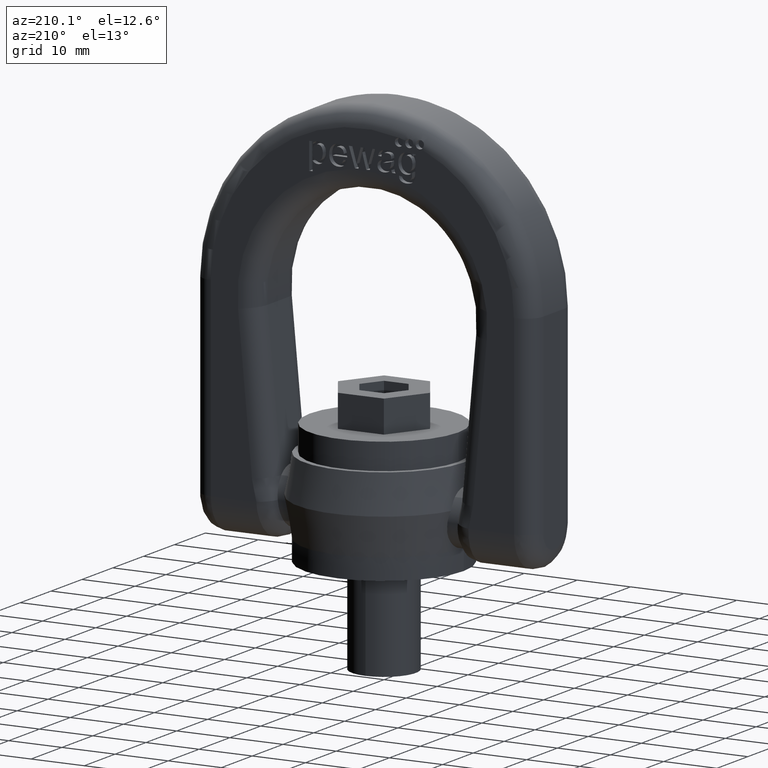
[diagram: clean part render]
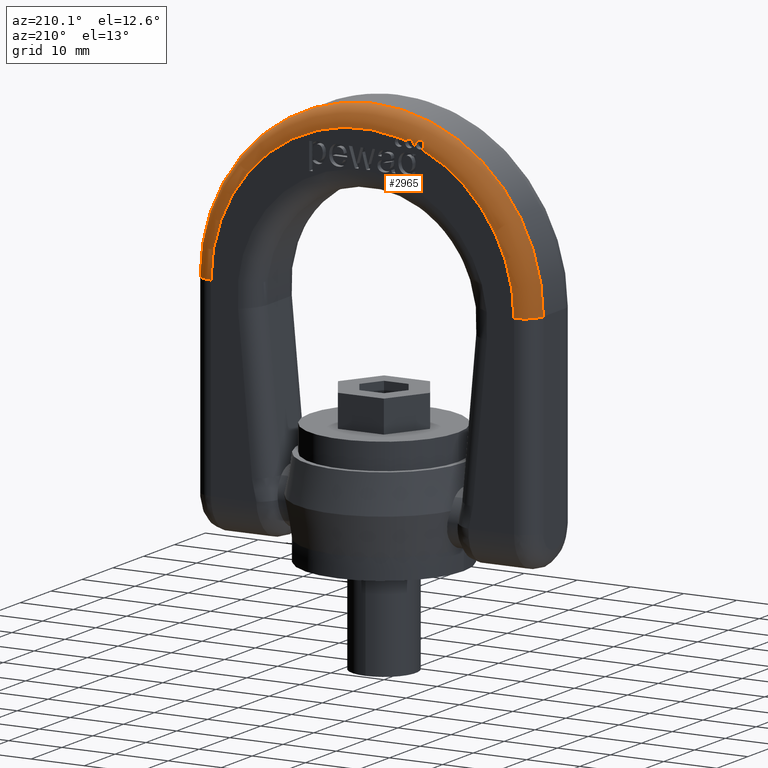
[diagram: same view with one face highlighted and labeled with its STEP entity id]
A machine part, auxiliary view. The second image highlights one B-rep face of the part: STEP entity #2965.
In plain terms, the highlighted toroidal blend (fillet) surface has major radius 28.5 mm and minor (blend) radius 3.5 mm.
Its self-contained STEP definition (entity closure, byte-faithful):
#210=TOROIDAL_SURFACE('',#5801,28.5,3.5);
#530=B_SPLINE_CURVE_WITH_KNOTS('',3,(#8466,#8467,#8468,#8469,#8470,#8471,
#8472,#8473,#8474,#8475,#8476,#8477,#8478,#8479,#8480,#8481,#8482,#8483,
#8484,#8485,#8486,#8487,#8488,#8489,#8490),.UNSPECIFIED.,.F.,.F.,(4,3,3,
3,3,3,3,3,4),(0.,0.124891175513873,0.249683168515219,0.375807004107994,
0.501847207664269,0.626400478712195,0.750895691613408,0.876854984452981,
1.),.UNSPECIFIED.);
#531=B_SPLINE_CURVE_WITH_KNOTS('',3,(#8495,#8496,#8497,#8498,#8499,#8500,
#8501),.UNSPECIFIED.,.F.,.F.,(4,3,4),(0.,0.649482804759324,1.),
 .UNSPECIFIED.);
#556=B_SPLINE_CURVE_WITH_KNOTS('',3,(#8711,#8712,#8713,#8714,#8715,#8716,
#8717,#8718,#8719,#8720,#8721,#8722,#8723,#8724,#8725,#8726,#8727,#8728,
#8729,#8730,#8731,#8732,#8733,#8734,#8735,#8736,#8737,#8738,#8739,#8740,
#8741,#8742,#8743,#8744,#8745,#8746,#8747,#8748,#8749,#8750,#8751,#8752,
#8753),.UNSPECIFIED.,.F.,.F.,(4,3,3,3,3,3,3,3,3,3,3,3,3,3,4),(0.,0.0720363637614495,
0.144085640095047,0.216049266328508,0.289764553616157,0.365923573314095,
0.442048626976867,0.51445691378457,0.583455080580775,0.653082710806686,
0.726414047090836,0.802777441224228,0.878621510332889,0.951848527467296,
1.),.UNSPECIFIED.);
#2611=FACE_OUTER_BOUND('',#3321,.T.);
#2965=ADVANCED_FACE('',(#2611),#210,.T.);
#3321=EDGE_LOOP('',(#4479,#4480,#4481,#4482,#4483,#4484,#4485,#4486,#4487,
#4488));
#4479=ORIENTED_EDGE('',*,*,#5540,.T.);
#4480=ORIENTED_EDGE('',*,*,#5101,.F.);
#4481=ORIENTED_EDGE('',*,*,#5542,.F.);
#4482=ORIENTED_EDGE('',*,*,#5316,.F.);
#4483=ORIENTED_EDGE('',*,*,#5360,.F.);
#4484=ORIENTED_EDGE('',*,*,#5314,.F.);
#4485=ORIENTED_EDGE('',*,*,#5358,.F.);
#4486=ORIENTED_EDGE('',*,*,#5312,.F.);
#4487=ORIENTED_EDGE('',*,*,#5390,.F.);
#4488=ORIENTED_EDGE('',*,*,#5310,.F.);
#4668=VERTEX_POINT('',#7071);
#4681=VERTEX_POINT('',#7103);
#4807=VERTEX_POINT('',#8286);
#4808=VERTEX_POINT('',#8288);
#4809=VERTEX_POINT('',#8290);
#4810=VERTEX_POINT('',#8292);
#4811=VERTEX_POINT('',#8294);
#4812=VERTEX_POINT('',#8296);
#4813=VERTEX_POINT('',#8298);
#4814=VERTEX_POINT('',#8300);
#5101=EDGE_CURVE('',#4681,#4668,#5579,.T.);
#5310=EDGE_CURVE('',#4807,#4808,#5585,.T.);
#5312=EDGE_CURVE('',#4809,#4810,#5587,.T.);
#5314=EDGE_CURVE('',#4811,#4812,#5589,.T.);
#5316=EDGE_CURVE('',#4813,#4814,#5591,.T.);
#5358=EDGE_CURVE('',#4810,#4811,#530,.T.);
#5360=EDGE_CURVE('',#4812,#4813,#531,.T.);
#5390=EDGE_CURVE('',#4808,#4809,#556,.T.);
#5540=EDGE_CURVE('',#4807,#4668,#5598,.T.);
#5542=EDGE_CURVE('',#4814,#4681,#5600,.T.);
#5579=CIRCLE('',#5671,32.);
#5585=CIRCLE('',#5726,28.5);
#5587=CIRCLE('',#5728,28.5);
#5589=CIRCLE('',#5730,28.5);
#5591=CIRCLE('',#5732,28.5);
#5598=CIRCLE('',#5796,3.5);
#5600=CIRCLE('',#5800,3.5);
#5671=AXIS2_PLACEMENT_3D('',#7108,#6024,#6025);
#5726=AXIS2_PLACEMENT_3D('',#8287,#6271,#6272);
#5728=AXIS2_PLACEMENT_3D('',#8291,#6275,#6276);
#5730=AXIS2_PLACEMENT_3D('',#8295,#6279,#6280);
#5732=AXIS2_PLACEMENT_3D('',#8299,#6283,#6284);
#5796=AXIS2_PLACEMENT_3D('',#9529,#6558,#6559);
#5800=AXIS2_PLACEMENT_3D('',#9533,#6566,#6567);
#5801=AXIS2_PLACEMENT_3D('',#9534,#6568,#6569);
#6024=DIRECTION('',(-2.34291072916505E-15,-1.,0.));
#6025=DIRECTION('',(1.,-2.3445871979999E-15,0.));
#6271=DIRECTION('',(2.34291072916505E-15,1.,0.));
#6272=DIRECTION('',(1.,-2.34339837982832E-15,0.));
#6275=DIRECTION('',(2.34291072916505E-15,1.,0.));
#6276=DIRECTION('',(1.,-2.34339837982832E-15,0.));
#6279=DIRECTION('',(2.34291072916505E-15,1.,0.));
#6280=DIRECTION('',(1.,-2.34339837982832E-15,0.));
#6283=DIRECTION('',(2.34291072916505E-15,1.,0.));
#6284=DIRECTION('',(1.,-2.34339837982832E-15,0.));
#6558=DIRECTION('',(0.,0.,1.));
#6559=DIRECTION('',(1.,0.,0.));
#6566=DIRECTION('',(0.,0.,-1.));
#6567=DIRECTION('',(-1.,0.,0.));
#6568=DIRECTION('',(-2.34291072916505E-15,-1.,0.));
#6569=DIRECTION('',(1.,-2.3445871979999E-15,0.));
#7071=CARTESIAN_POINT('',(-32.,3.50000000000007,45.));
#7103=CARTESIAN_POINT('',(32.,3.49999999999992,45.));
#7108=CARTESIAN_POINT('',(-6.93889390390723E-15,3.49999999999999,45.));
#8286=CARTESIAN_POINT('',(-28.5,7.00000000000007,45.));
#8287=CARTESIAN_POINT('',(1.26129364817044E-15,7.,45.));
#8288=CARTESIAN_POINT('',(-11.0960169977955,7.00000000000003,71.2512553373097));
#8290=CARTESIAN_POINT('',(-10.0407917151085,7.00000000000002,71.6726920601166));
#8291=CARTESIAN_POINT('',(1.26129364817044E-15,7.,45.));
#8292=CARTESIAN_POINT('',(-9.54731677113193,7.00000000000002,71.8532817821521));
#8294=CARTESIAN_POINT('',(-8.15956921363635,7.00000000000002,72.3069850083797));
#8295=CARTESIAN_POINT('',(1.26129364817044E-15,7.,45.));
#8296=CARTESIAN_POINT('',(-7.21582951248145,7.00000000000002,72.5713946772157));
#8298=CARTESIAN_POINT('',(-6.84164670590965,7.00000000000002,72.6666201468758));
#8299=CARTESIAN_POINT('',(1.26129364817044E-15,7.,45.));
#8300=CARTESIAN_POINT('',(28.5,6.99999999999993,45.));
#8466=CARTESIAN_POINT('',(-9.54731677113193,7.00000000000002,71.8532817821521));
#8467=CARTESIAN_POINT('',(-9.55436055716987,7.00000000000002,71.9363290177625));
#8468=CARTESIAN_POINT('',(-9.54725489457236,6.99708840697232,72.021719807432));
#8469=CARTESIAN_POINT('',(-9.52665058197211,6.99256973269204,72.1023517003112));
#8470=CARTESIAN_POINT('',(-9.50605614023307,6.98805322316277,72.1829449650528));
#8471=CARTESIAN_POINT('',(-9.47143854953727,6.98186802519192,72.2610131187223));
#8472=CARTESIAN_POINT('',(-9.42561001841596,6.97590150505483,72.3303236560402));
#8473=CARTESIAN_POINT('',(-9.37930740908199,6.96987326360281,72.4003511837317));
#8474=CARTESIAN_POINT('',(-9.32026459465991,6.9639633467465,72.4633769259454));
#8475=CARTESIAN_POINT('',(-9.25328858854267,6.95986823948583,72.514186085177));
#8476=CARTESIAN_POINT('',(-9.18637132871059,6.95577672414341,72.5649506784585));
#8477=CARTESIAN_POINT('',(-9.10965155009316,6.95342932066596,72.6049163432531));
#8478=CARTESIAN_POINT('',(-9.02959542380645,6.95349486354419,72.6306596227714));
#8479=CARTESIAN_POINT('',(-8.95045657724404,6.95355965543488,72.6561079368768));
#8480=CARTESIAN_POINT('',(-8.86588529950406,6.95598030642991,72.6683666630244));
#8481=CARTESIAN_POINT('',(-8.78287828499998,6.96008161219566,72.6664712057803));
#8482=CARTESIAN_POINT('',(-8.69989015241682,6.96418198502181,72.664576179703));
#8483=CARTESIAN_POINT('',(-8.61620220576352,6.97002933353927,72.648507056714));
#8484=CARTESIAN_POINT('',(-8.53850657479774,6.97598321126621,72.6196042091098));
#8485=CARTESIAN_POINT('',(-8.45992072452873,6.9820053072033,72.5903701990897));
#8486=CARTESIAN_POINT('',(-8.38529123247853,6.98824201533686,72.5471925533119));
#8487=CARTESIAN_POINT('',(-8.32072483770848,6.99275568954571,72.4935508134504));
#8488=CARTESIAN_POINT('',(-8.25757975584821,6.99717000334507,72.441089899894));
#8489=CARTESIAN_POINT('',(-8.20235473524247,7.00000000000002,72.3771871032312));
#8490=CARTESIAN_POINT('',(-8.15956921363635,7.00000000000002,72.3069850083797));
#8495=CARTESIAN_POINT('',(-7.21582951248145,7.00000000000002,72.5713946772157));
#8496=CARTESIAN_POINT('',(-7.142549868693,7.00000000000002,72.6123397046623));
#8497=CARTESIAN_POINT('',(-7.06119043447195,6.99988762440454,72.6411975495318));
#8498=CARTESIAN_POINT('',(-6.97848862921123,6.99992797969885,72.655578482896));
#8499=CARTESIAN_POINT('',(-6.9334029641411,6.99994997976617,72.6634183836456));
#8500=CARTESIAN_POINT('',(-6.88740609774984,7.00000000000002,72.6671298340331));
#8501=CARTESIAN_POINT('',(-6.84164670590965,7.00000000000002,72.6666201468758));
#8711=CARTESIAN_POINT('',(-11.0960169977955,7.00000000000003,71.2512553373097));
#8712=CARTESIAN_POINT('',(-11.1693862252215,7.00000000000003,71.2894076781018));
#8713=CARTESIAN_POINT('',(-11.2372801737552,6.99816113361534,71.3405815941575));
#8714=CARTESIAN_POINT('',(-11.294101762378,6.99340023683162,71.4004755468505));
#8715=CARTESIAN_POINT('',(-11.3509314308399,6.98863866306436,71.4603780162623));
#8716=CARTESIAN_POINT('',(-11.3982296159628,6.98078181251342,71.5306327991326));
#8717=CARTESIAN_POINT('',(-11.4322797450481,6.96997404913709,71.6052275080866));
#8718=CARTESIAN_POINT('',(-11.4663062446217,6.95917378594293,71.6797704511121));
#8719=CARTESIAN_POINT('',(-11.4880570849795,6.94514909998997,71.7606107829472));
#8720=CARTESIAN_POINT('',(-11.4962064740908,6.92935672267567,71.8413281106351));
#8721=CARTESIAN_POINT('',(-11.5045537095839,6.91318094672016,71.9240050491618));
#8722=CARTESIAN_POINT('',(-11.4989032680172,6.89475457072088,72.0087528487409));
#8723=CARTESIAN_POINT('',(-11.4798815663192,6.8765656054824,72.0892149183164));
#8724=CARTESIAN_POINT('',(-11.4602474900999,6.85779107439606,72.1722673408544));
#8725=CARTESIAN_POINT('',(-11.425798616148,6.83879648218638,72.253080148313));
#8726=CARTESIAN_POINT('',(-11.3790204074076,6.82273769534153,72.3251190225966));
#8727=CARTESIAN_POINT('',(-11.3323103055325,6.80670228933279,72.3970530116775));
#8728=CARTESIAN_POINT('',(-11.2718268537045,6.79321502408852,72.4623242604527));
#8729=CARTESIAN_POINT('',(-11.202558316852,6.78496931340846,72.5147393795102));
#8730=CARTESIAN_POINT('',(-11.1366334816826,6.77712163620698,72.5646243379815));
#8731=CARTESIAN_POINT('',(-11.0608001507055,6.77386049317624,72.6042678960395));
#8732=CARTESIAN_POINT('',(-10.9818472584142,6.77585916714957,72.6299315885336));
#8733=CARTESIAN_POINT('',(-10.9064878114888,6.77776687389523,72.6544272291148));
#8734=CARTESIAN_POINT('',(-10.8262654918863,6.78447760641525,72.6669070137446));
#8735=CARTESIAN_POINT('',(-10.7476719544953,6.79475954967328,72.6666630534607));
#8736=CARTESIAN_POINT('',(-10.6683057490481,6.80514257667655,72.6664166947567));
#8737=CARTESIAN_POINT('',(-10.5885341063364,6.81936438271018,72.653271537548));
#8738=CARTESIAN_POINT('',(-10.5140460119326,6.83514069047856,72.6285835968735));
#8739=CARTESIAN_POINT('',(-10.435646932143,6.85174533074249,72.6025994198547));
#8740=CARTESIAN_POINT('',(-10.361014652144,6.87045083007281,72.5631673352057));
#8741=CARTESIAN_POINT('',(-10.2955467793802,6.88846726638542,72.5133007842532));
#8742=CARTESIAN_POINT('',(-10.2274582497119,6.90720489457772,72.4614380920555));
#8743=CARTESIAN_POINT('',(-10.1674056028693,6.9256656783728,72.3967885181543));
#8744=CARTESIAN_POINT('',(-10.120531449759,6.94127534142551,72.3244280481846));
#8745=CARTESIAN_POINT('',(-10.0739995059715,6.95677104461189,72.2525958528777));
#8746=CARTESIAN_POINT('',(-10.0391797155544,6.96986163940688,72.1710515267169));
#8747=CARTESIAN_POINT('',(-10.0195601983438,6.97924615273705,72.0868362766343));
#8748=CARTESIAN_POINT('',(-10.000604518947,6.98831313558239,72.0054704986818));
#8749=CARTESIAN_POINT('',(-9.99531739416406,6.99419410437379,71.9193221802899));
#8750=CARTESIAN_POINT('',(-10.0043691100465,6.99719917961373,71.8358299426657));
#8751=CARTESIAN_POINT('',(-10.0103715380147,6.99919192307815,71.7804640707422));
#8752=CARTESIAN_POINT('',(-10.022664097365,7.00000000000002,71.7253871207659));
#8753=CARTESIAN_POINT('',(-10.0407917151085,7.00000000000002,71.6726920601166));
#9529=CARTESIAN_POINT('',(-28.5,3.50000000000007,45.));
#9533=CARTESIAN_POINT('',(28.5,3.49999999999993,45.));
#9534=CARTESIAN_POINT('',(-6.93889390390723E-15,3.5,45.));